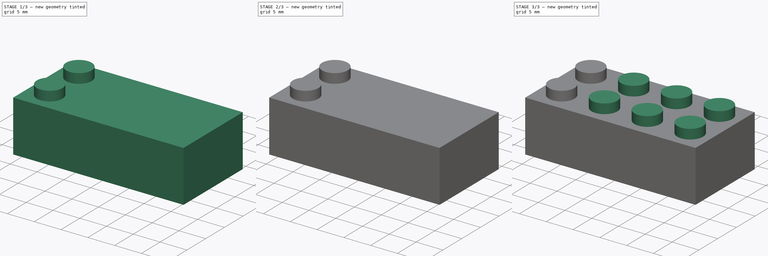
[diagram: build sequence overview — one tinted view per stage of 3, left to right]
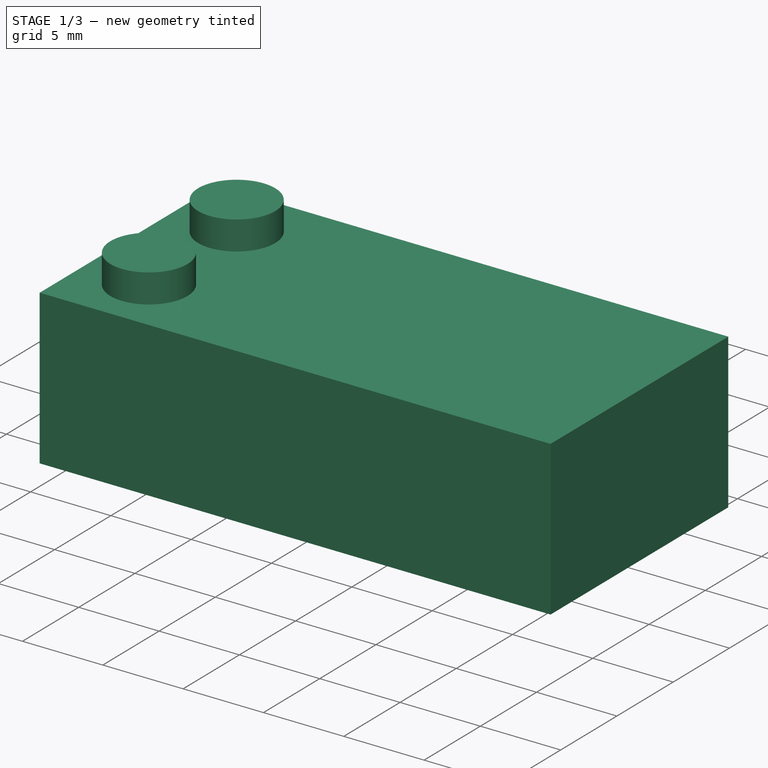
[diagram: stage 1 of 3 — iso view after this stage's code; geometry added in this stage tinted green]
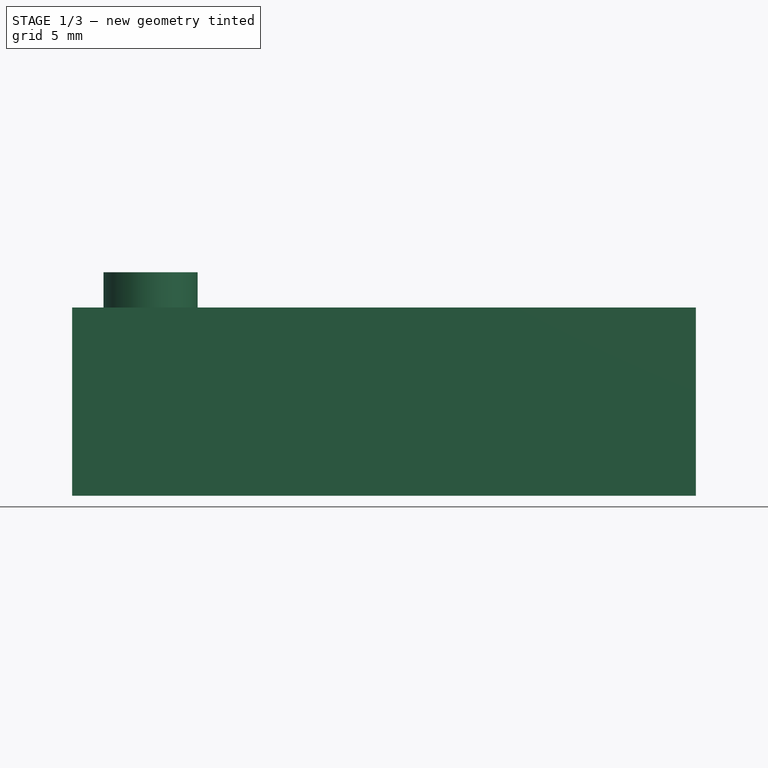
[diagram: stage 1 of 3 — front view after this stage's code; geometry added in this stage tinted green]
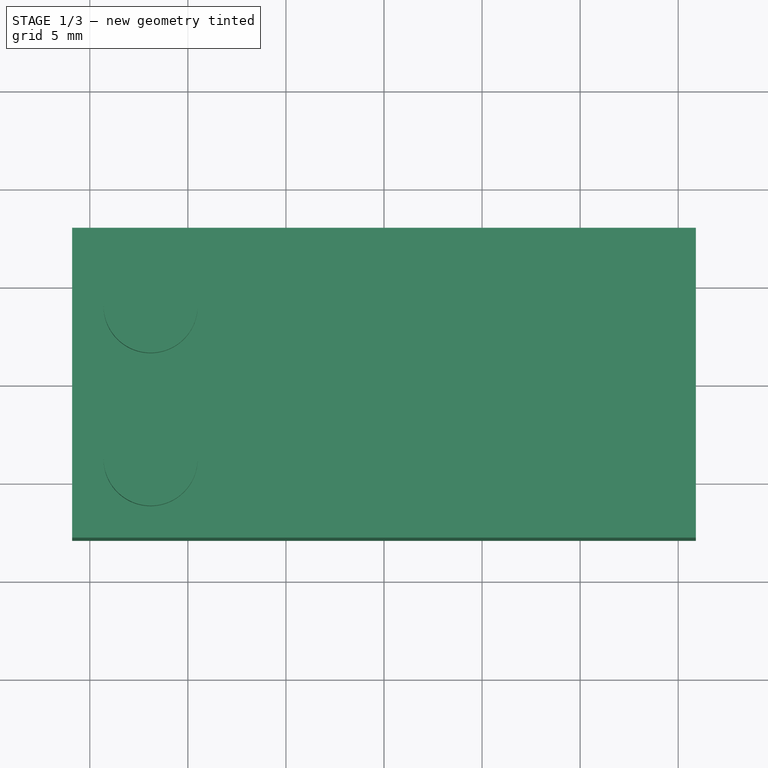
[diagram: stage 1 of 3 — top view after this stage's code; geometry added in this stage tinted green]
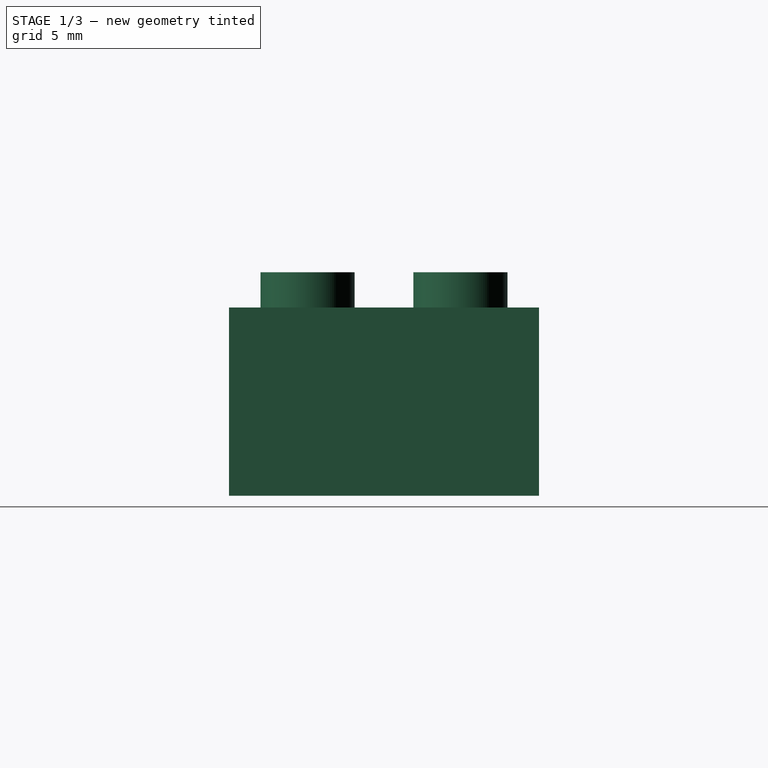
[diagram: stage 1 of 3 — right view after this stage's code; geometry added in this stage tinted green]
FCSTD DOCUMENT  (FreeCAD 0.17R13247 (Git))
Label: mi-pieza-lego
License: CreativeCommons Attribution-ShareAlike
LicenseURL: http://creativecommons.org/licenses/by-sa/4.0/
objects: Sketcher::SketchObject×5, PartDesign::Pad×3, PartDesign::LinearPattern×3, PartDesign::Pocket×2, PartDesign::Body×1
note: 19 computed .brp shape members not serialized (recipe doc carries the construction recipe); baked Part::Feature solids carry a one-line shape summary decoded from their .brp

FEATURE [Sketcher::SketchObject] Sketch
  MapMode = 5
  Support = -> [XY_Plane]
  sketch-geometry (4):
    g0: LineSegment StartX=-15.9 StartY=7.9 StartZ=0 EndX=15.9 EndY=7.9 EndZ=0
    g1: LineSegment StartX=15.9 StartY=7.9 StartZ=0 EndX=15.9 EndY=-7.9 EndZ=0
    g2: LineSegment StartX=15.9 StartY=-7.9 StartZ=0 EndX=-15.9 EndY=-7.9 EndZ=0
    g3: LineSegment StartX=-15.9 StartY=-7.9 StartZ=0 EndX=-15.9 EndY=7.9 EndZ=0
  constraints (11):
    c: Coincident(g0,g1)
    c: Coincident(g1,g2)
    c: Coincident(g2,g3)
    c: Coincident(g3,g0)
    c: Horizontal(g0)
    c: Horizontal(g2)
    c: Vertical(g1)
    c: Vertical(g3)
    c: DistanceX(g0,g0) = 31.8
    c: DistanceY(g3,g3) = 15.8
    c: Symmetric(g0,g1,g-1)
FEATURE [PartDesign::Pad] Pad  label="Base"
  Length = 9.6
  Length2 = 100
  Profile = -> Sketch
  Refine = true
  Type = 0
FEATURE [Sketcher::SketchObject] Sketch001
  ExternalGeometry = -> [Pad]
  MapMode = 5
  Placement = pos=(0,0,0) rot=(1,0,0;3.14159rad)
  Support = -> [Pad]
  sketch-geometry (4):
    g0: LineSegment StartX=-14.7 StartY=6.7 StartZ=0 EndX=14.7 EndY=6.7 EndZ=0
    g1: LineSegment StartX=14.7 StartY=6.7 StartZ=0 EndX=14.7 EndY=-6.7 EndZ=0
    g2: LineSegment StartX=14.7 StartY=-6.7 StartZ=0 EndX=-14.7 EndY=-6.7 EndZ=0
    g3: LineSegment StartX=-14.7 StartY=-6.7 StartZ=0 EndX=-14.7 EndY=6.7 EndZ=0
  constraints (11):
    c: Coincident(g0,g1)
    c: Coincident(g1,g2)
    c: Coincident(g2,g3)
    c: Coincident(g3,g0)
    c: Horizontal(g0)
    c: Horizontal(g2)
    c: Vertical(g1)
    c: Vertical(g3)
    c: DistanceX(g-3,g0) = 1.2
    c: DistanceY(g-3,g2) = 1.2
    c: Symmetric(g0,g1,g-1)
FEATURE [PartDesign::Pocket] Pocket  label="Base-agujero"
  BaseFeature = -> Pad
  Length = 8.6
  Length2 = 100
  Profile = -> Sketch001
  Refine = true
  Type = 0
FEATURE [Sketcher::SketchObject] Sketch002
  ExternalGeometry = -> [Pocket]
  MapMode = 5
  Placement = pos=(0,0,9.6) rot=(0,0,1;0rad)
  Support = -> [Pocket]
  sketch-geometry (2):
    g0: Circle CenterX=-11.9 CenterY=3.9 CenterZ=0 NormalX=0 NormalY=0 NormalZ=1 AngleXU=0 Radius=2.4
    g1: Circle CenterX=-11.9 CenterY=-3.9 CenterZ=0 NormalX=0 NormalY=0 NormalZ=1 AngleXU=0 Radius=2.4
  constraints (5):
    c: Radius(g0) = 2.4
    c: Radius(g1) = 2.4
    c: DistanceX(g-3,g0) = 4
    c: DistanceY(g0,g-3) = 4
    c: Symmetric(g0,g1,g-1)
FEATURE [PartDesign::Pad] Pad001  label="cilindros-superficie"
  BaseFeature = -> Pocket
  Length = 1.8
  Length2 = 100
  Profile = -> Sketch002
  Refine = true
  Type = 0
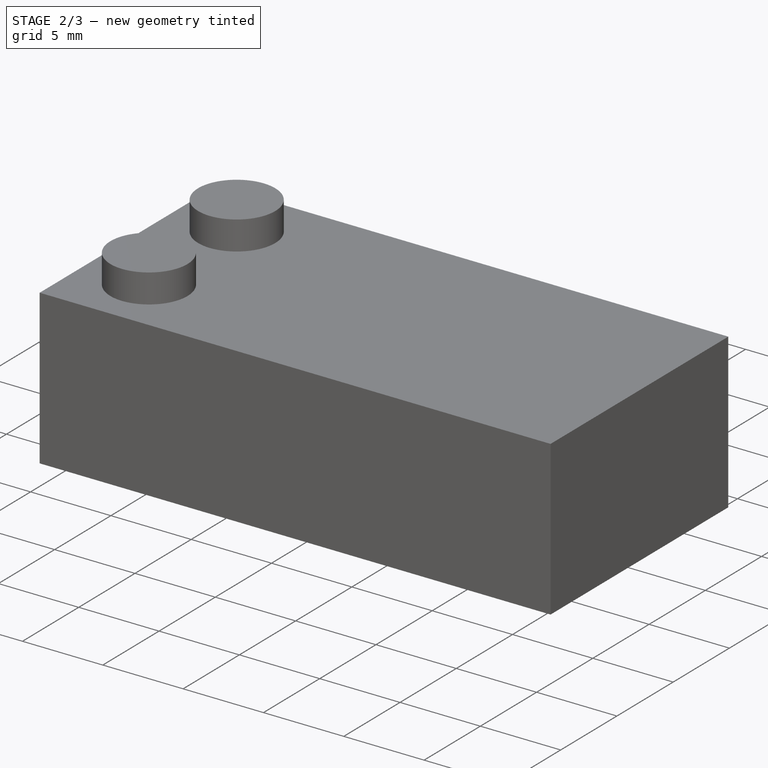
[diagram: stage 2 of 3 — iso view after this stage's code; geometry added in this stage tinted green]
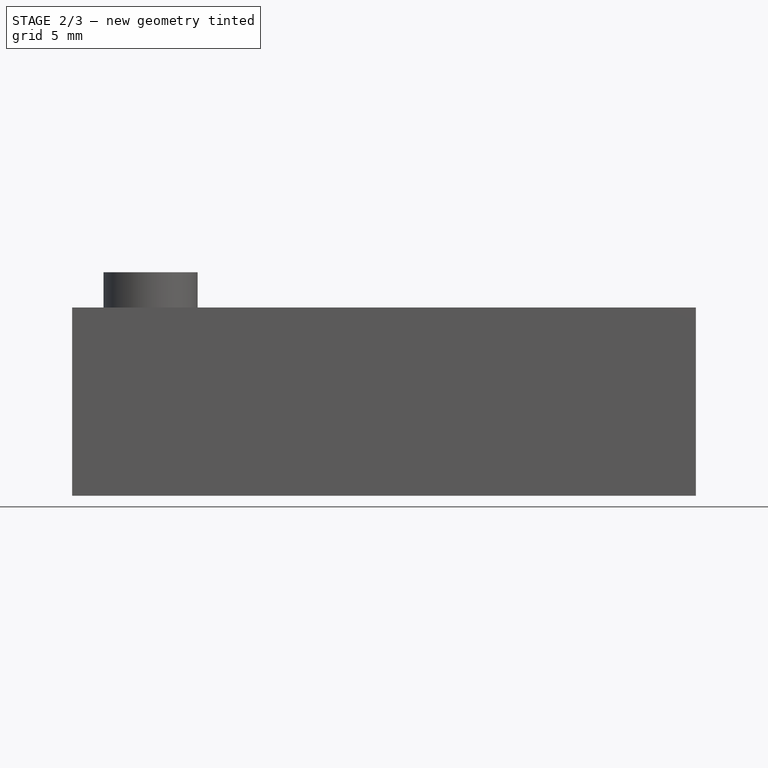
[diagram: stage 2 of 3 — front view after this stage's code; geometry added in this stage tinted green]
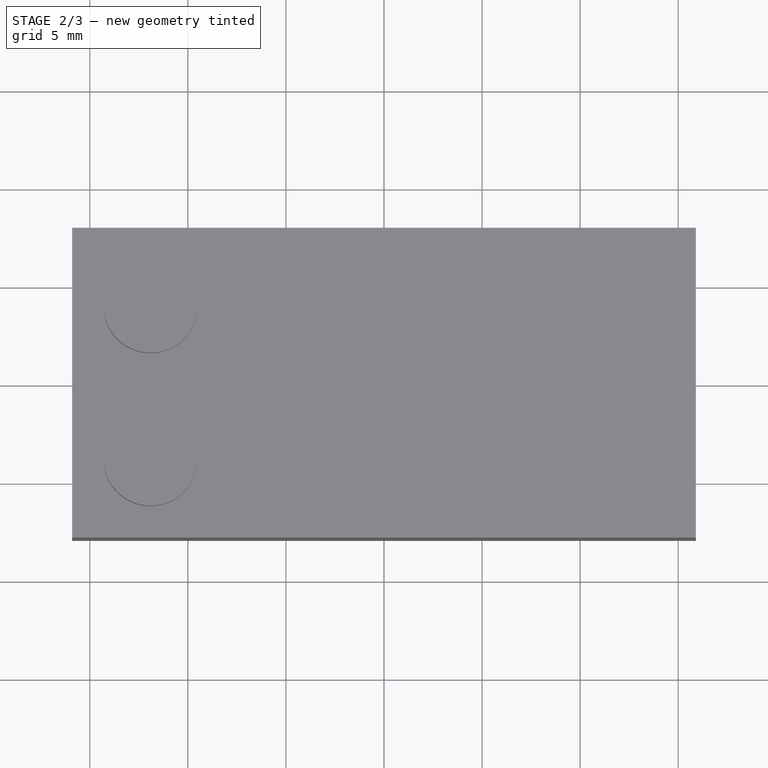
[diagram: stage 2 of 3 — top view after this stage's code; geometry added in this stage tinted green]
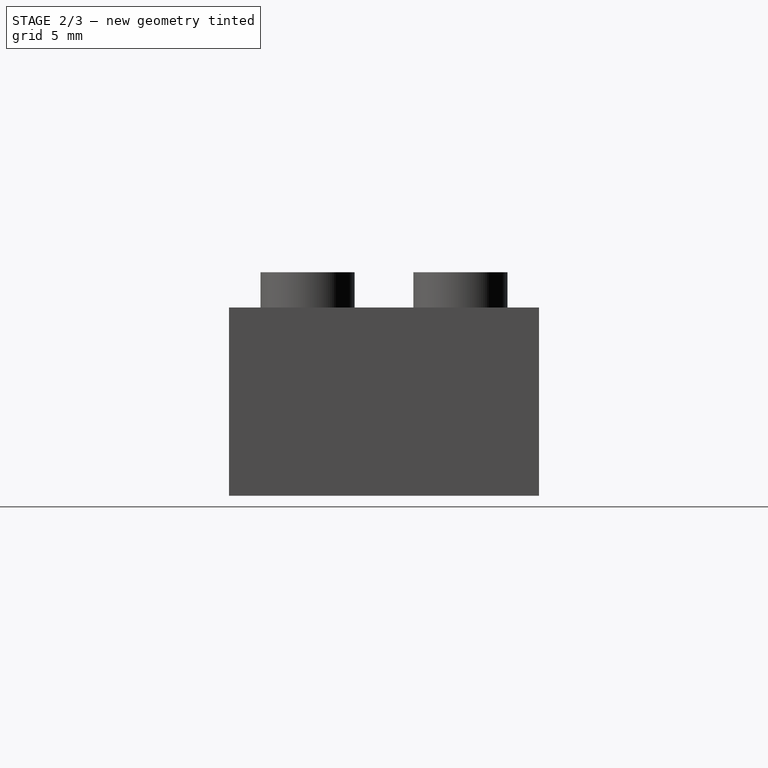
[diagram: stage 2 of 3 — right view after this stage's code; geometry added in this stage tinted green]
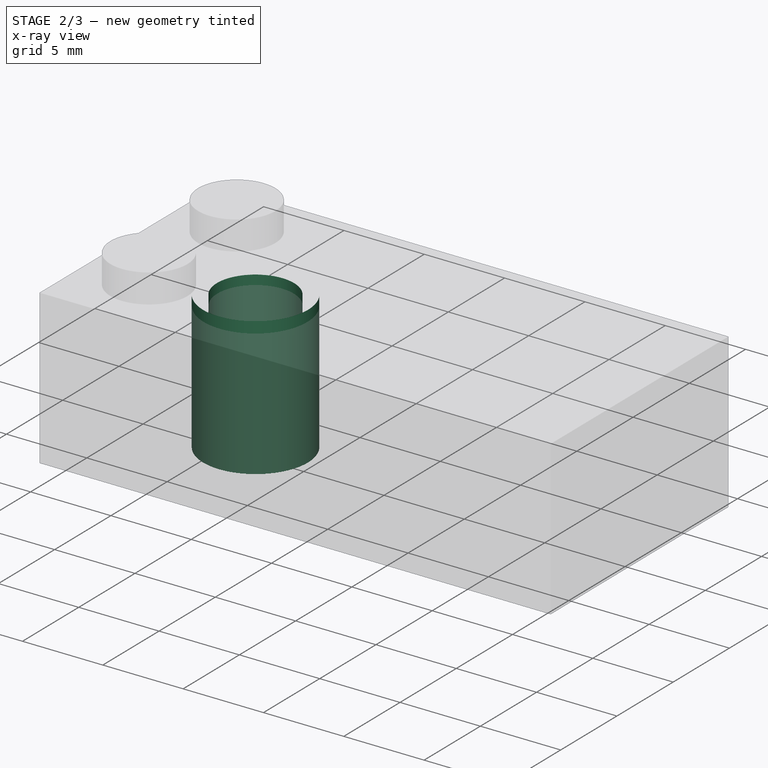
[diagram: stage 2 of 3 — x-ray composite at the iso view; earlier geometry ghosted, this stage's added geometry solid]
FEATURE [Sketcher::SketchObject] Sketch003
  MapMode = 5
  Placement = pos=(0,0,8.6) rot=(1,0,0;3.14159rad)
  Support = -> [Pad001]
  sketch-geometry (1):
    g0: Circle CenterX=-8 CenterY=0 CenterZ=0 NormalX=0 NormalY=0 NormalZ=1 AngleXU=0 Radius=3.255
  constraints (3):
    c: PointOnObject(g0,g-1)
    c: Radius(g0) = 3.255
    c: DistanceX(g0,g-1) = 8
FEATURE [PartDesign::Pad] Pad002  label="cilindros-base"
  BaseFeature = -> Pad001
  Length = 8.6
  Length2 = 100
  Profile = -> Sketch003
  Refine = true
  Type = 0
FEATURE [Sketcher::SketchObject] Sketch004
  ExternalGeometry = -> [Pad002]
  MapMode = 5
  Placement = pos=(0,0,0) rot=(1,0,0;3.14159rad)
  Support = -> [Pad002]
  sketch-geometry (1):
    g0: Circle CenterX=-8 CenterY=0 CenterZ=0 NormalX=0 NormalY=0 NormalZ=1 AngleXU=0 Radius=2.4
  constraints (2):
    c: Coincident(g0,g-3)
    c: Radius(g0) = 2.4
FEATURE [PartDesign::Pocket] Pocket001  label="cilindros-base-agujero"
  BaseFeature = -> Pad002
  Length = 8.6
  Length2 = 100
  Profile = -> Sketch004
  Refine = true
  Type = 0
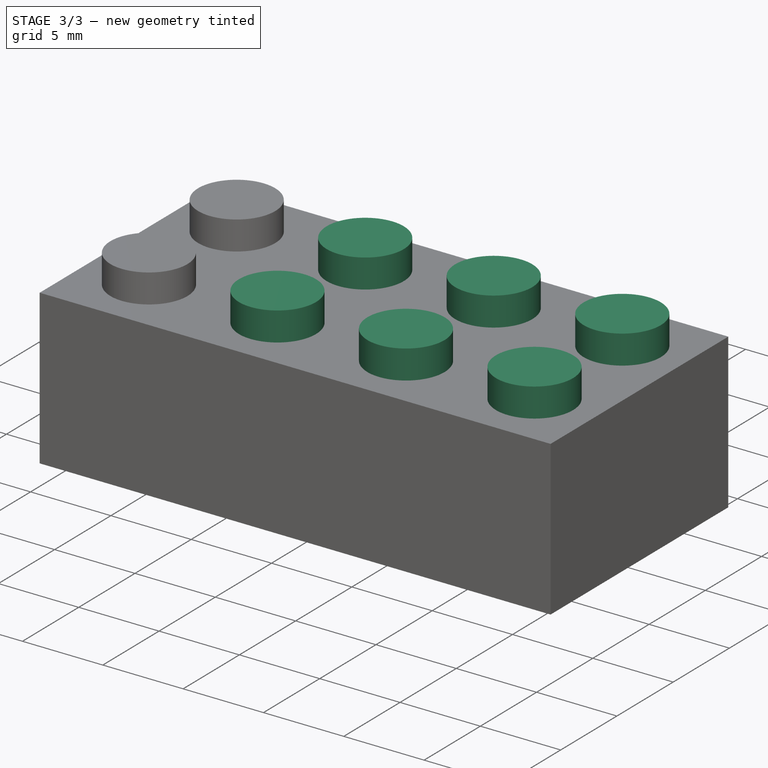
[diagram: stage 3 of 3 — iso view after this stage's code; geometry added in this stage tinted green]
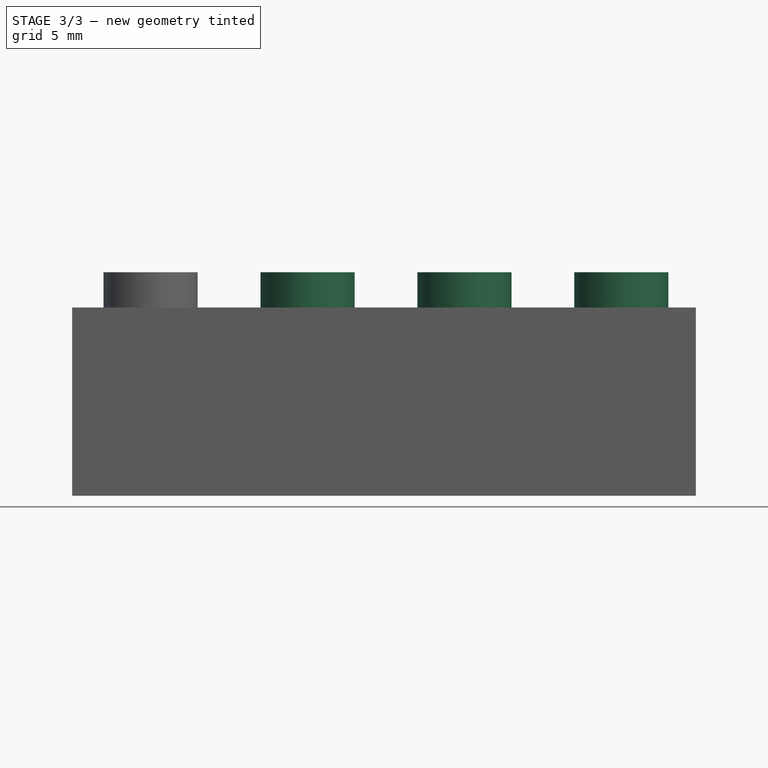
[diagram: stage 3 of 3 — front view after this stage's code; geometry added in this stage tinted green]
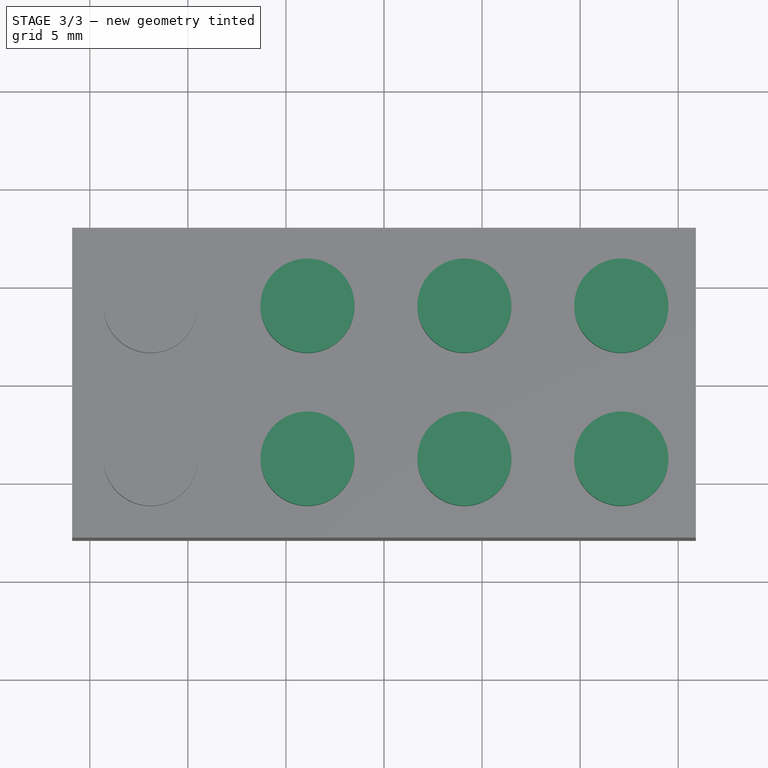
[diagram: stage 3 of 3 — top view after this stage's code; geometry added in this stage tinted green]
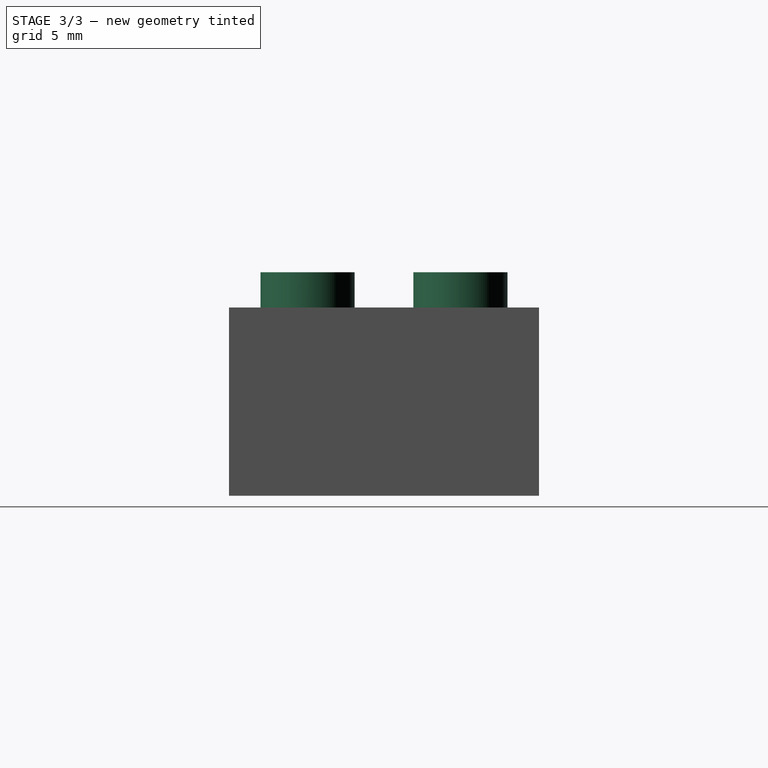
[diagram: stage 3 of 3 — right view after this stage's code; geometry added in this stage tinted green]
FEATURE [PartDesign::LinearPattern] LinearPattern  label="cilindros-superficie-copias"
  BaseFeature = -> Pocket001
  Direction = -> Sketch002 [H_Axis]
  Length = 24
  Occurrences = 4
  Originals = -> [Pad001]
  Refine = true
FEATURE [PartDesign::LinearPattern] LinearPattern001  label="cilindros-base-copias"
  BaseFeature = -> LinearPattern
  Direction = -> Sketch003 [H_Axis]
  Length = 16
  Occurrences = 3
  Originals = -> [Pad002]
  Refine = true
FEATURE [PartDesign::LinearPattern] LinearPattern002  label="cilindros-base-agujero-copias"
  BaseFeature = -> LinearPattern001
  Direction = -> Sketch004 [H_Axis]
  Length = 16
  Occurrences = 3
  Originals = -> [Pocket001]
  Refine = true
FEATURE [PartDesign::Body] Body  label="LEGO"
  Group = -> [Sketch,Pad,Sketch001,Pocket,Sketch002,Pad001,Sketch003,Pad002,Sketch004,Pocket001,LinearPattern,LinearPattern001,LinearPattern002]
  Origin = -> Origin
  Tip = -> LinearPattern002
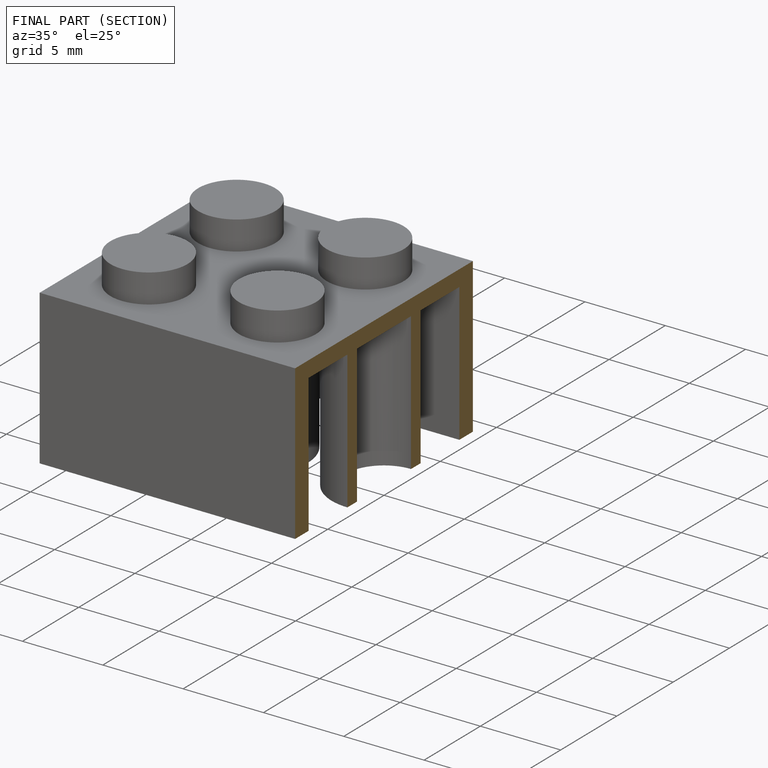
[diagram: finished part — half-section view (interior)]
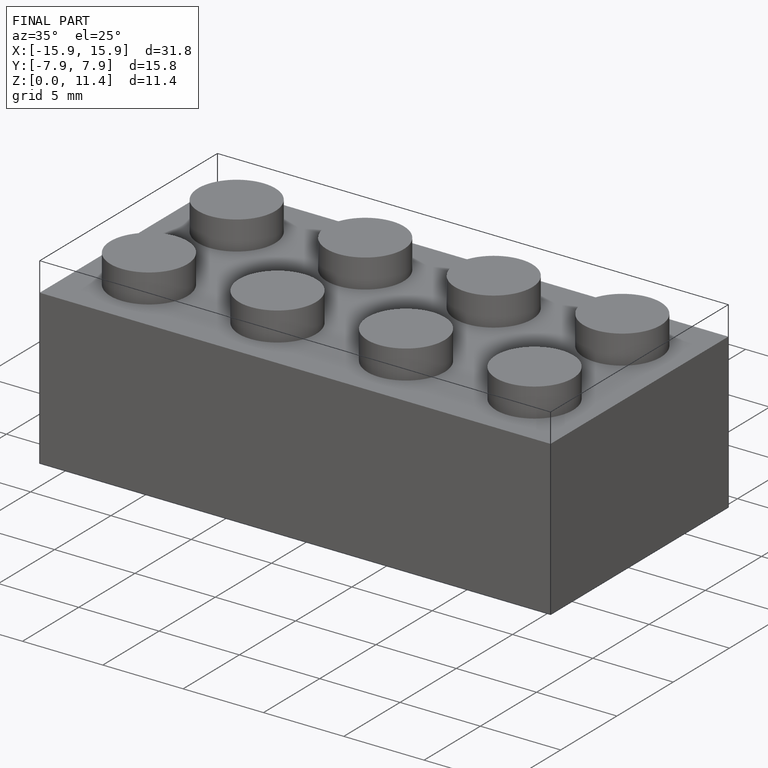
[diagram: finished part — iso view with bounding-box wireframe]
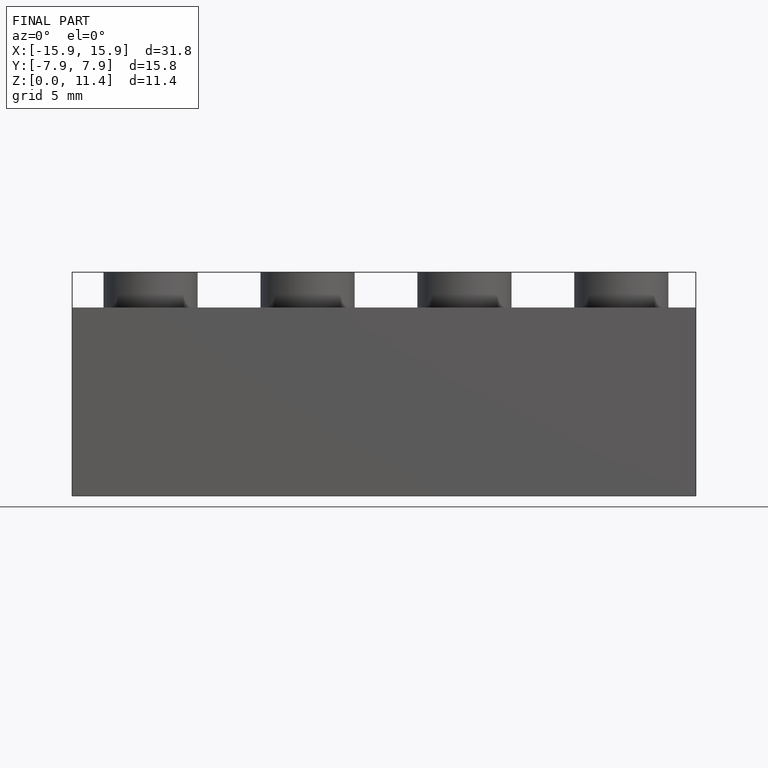
[diagram: finished part — front view with bounding-box wireframe]
